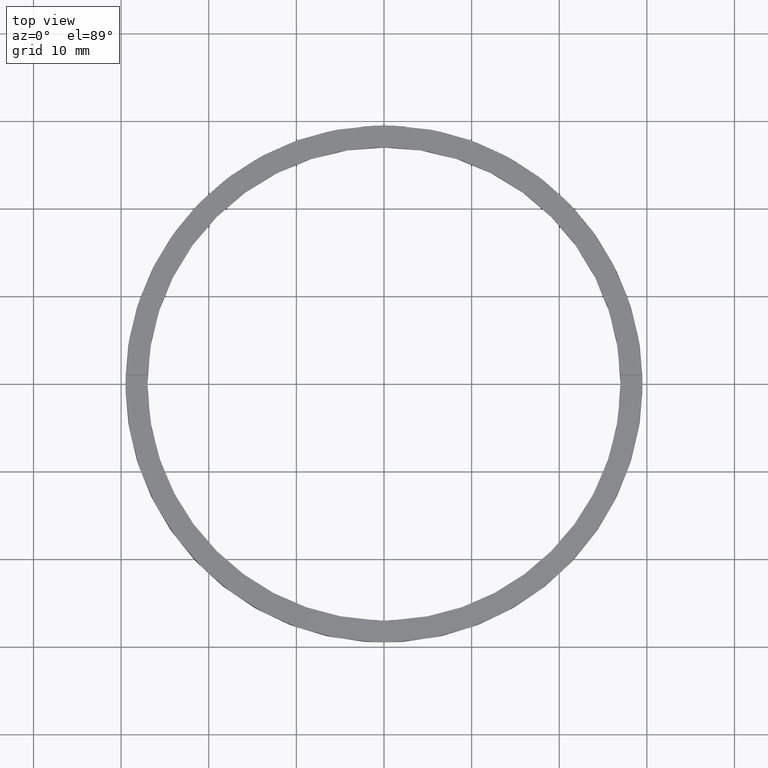
[diagram: clean part render]
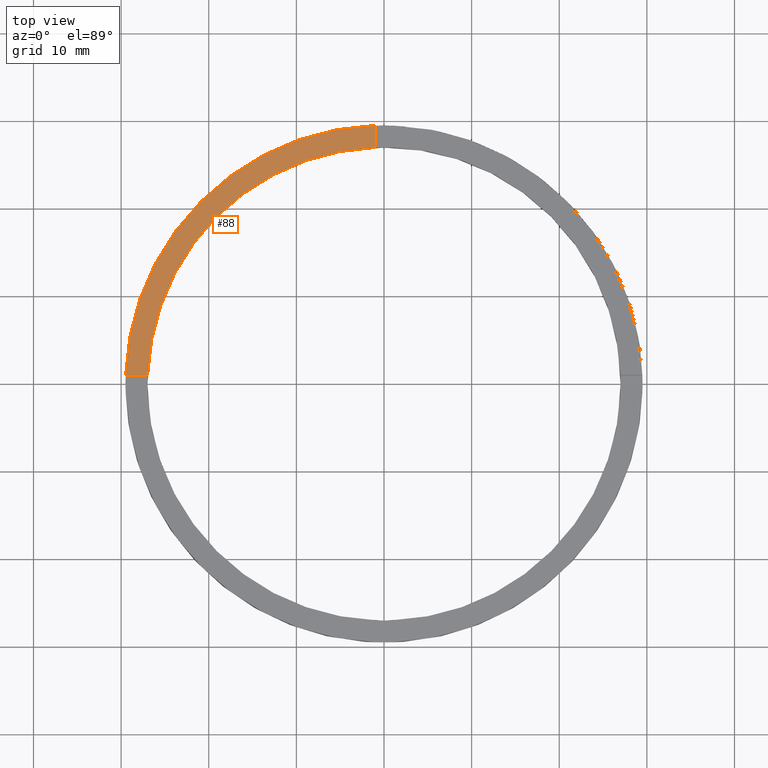
[diagram: same view with one face highlighted and labeled with its STEP entity id]
A machine part, top view. The second image highlights one B-rep face of the part: STEP entity #88.
In plain terms, the highlighted planar face has unit normal (0, 0, 1).
Its self-contained STEP definition (entity closure, byte-faithful):
#5 = CIRCLE ( 'NONE', #579, 27.00000000000000000 ) ;
#47 = CARTESIAN_POINT ( 'NONE',  ( -29.48304597561114093, 0.9999999999999749090, 2.500000000000000000 ) ) ;
#52 = EDGE_CURVE ( 'NONE', #196, #220, #197, .T. ) ;
#57 = DIRECTION ( 'NONE',  ( 0.000000000000000000, 0.000000000000000000, 1.000000000000000000 ) ) ;
#62 = PLANE ( 'NONE',  #625 ) ;
#88 = ADVANCED_FACE ( 'NONE', ( #568 ), #62, .T. ) ;
#89 = DIRECTION ( 'NONE',  ( -0.000000000000000000, -1.000000000000000000, -0.000000000000000000 ) ) ;
#92 = DIRECTION ( 'NONE',  ( 1.000000000000000000, 0.000000000000000000, 0.000000000000000000 ) ) ;
#102 = DIRECTION ( 'NONE',  ( 0.000000000000000000, 0.000000000000000000, 1.000000000000000000 ) ) ;
#145 = VERTEX_POINT ( 'NONE', #186 ) ;
#186 = CARTESIAN_POINT ( 'NONE',  ( -1.000000000000024203, 29.48304597561113738, 2.500000000000000000 ) ) ;
#196 = VERTEX_POINT ( 'NONE', #337 ) ;
#197 = LINE ( 'NONE', #580, #287 ) ;
#206 = ORIENTED_EDGE ( 'NONE', *, *, #52, .F. ) ;
#213 = ORIENTED_EDGE ( 'NONE', *, *, #605, .F. ) ;
#218 = CARTESIAN_POINT ( 'NONE',  ( 0.000000000000000000, 0.000000000000000000, 2.500000000000000000 ) ) ;
#220 = VERTEX_POINT ( 'NONE', #47 ) ;
#248 = VERTEX_POINT ( 'NONE', #668 ) ;
#262 = VECTOR ( 'NONE', #89, 1000.000000000000000 ) ;
#287 = VECTOR ( 'NONE', #613, 1000.000000000000000 ) ;
#301 = DIRECTION ( 'NONE',  ( 0.000000000000000000, 0.000000000000000000, 1.000000000000000000 ) ) ;
#337 = CARTESIAN_POINT ( 'NONE',  ( -26.98147512646408330, 0.9999999999999754641, 2.500000000000000000 ) ) ;
#347 = DIRECTION ( 'NONE',  ( 1.000000000000000000, 0.000000000000000000, 0.000000000000000000 ) ) ;
#368 = AXIS2_PLACEMENT_3D ( 'NONE', #775, #57, #92 ) ;
#381 = CIRCLE ( 'NONE', #368, 29.50000000000000355 ) ;
#385 = CARTESIAN_POINT ( 'NONE',  ( -1.000000000000024203, 19.50000000000000355, 2.500000000000000000 ) ) ;
#449 = ORIENTED_EDGE ( 'NONE', *, *, #703, .F. ) ;
#525 = LINE ( 'NONE', #385, #262 ) ;
#561 = EDGE_CURVE ( 'NONE', #145, #220, #381, .T. ) ;
#568 = FACE_OUTER_BOUND ( 'NONE', #763, .T. ) ;
#579 = AXIS2_PLACEMENT_3D ( 'NONE', #218, #301, #347 ) ;
#580 = CARTESIAN_POINT ( 'NONE',  ( -19.50000000000018829, 0.9999999999999767963, 2.500000000000000000 ) ) ;
#603 = CARTESIAN_POINT ( 'NONE',  ( 0.000000000000000000, 0.000000000000000000, 2.500000000000000000 ) ) ;
#605 = EDGE_CURVE ( 'NONE', #248, #196, #5, .T. ) ;
#613 = DIRECTION ( 'NONE',  ( -1.000000000000000000, -1.951563910473908228E-16, 0.000000000000000000 ) ) ;
#625 = AXIS2_PLACEMENT_3D ( 'NONE', #603, #102, #646 ) ;
#646 = DIRECTION ( 'NONE',  ( 1.000000000000000000, 0.000000000000000000, -0.000000000000000000 ) ) ;
#668 = CARTESIAN_POINT ( 'NONE',  ( -1.000000000000024203, 26.98147512646407975, 2.500000000000000000 ) ) ;
#703 = EDGE_CURVE ( 'NONE', #145, #248, #525, .T. ) ;
#763 = EDGE_LOOP ( 'NONE', ( #449, #770, #206, #213 ) ) ;
#770 = ORIENTED_EDGE ( 'NONE', *, *, #561, .T. ) ;
#775 = CARTESIAN_POINT ( 'NONE',  ( 0.000000000000000000, 0.000000000000000000, 2.500000000000000000 ) ) ;